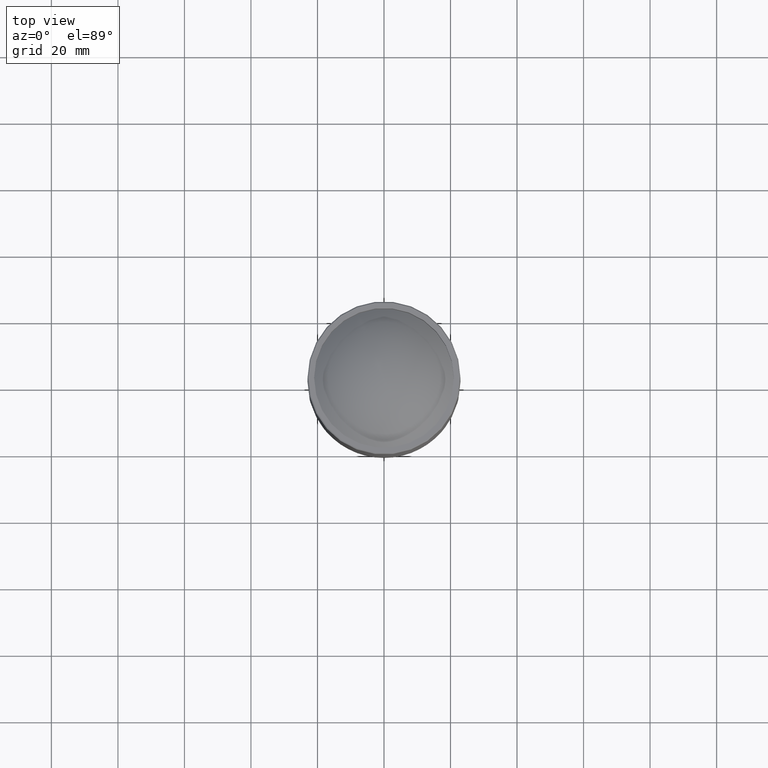
[diagram: clean part render]
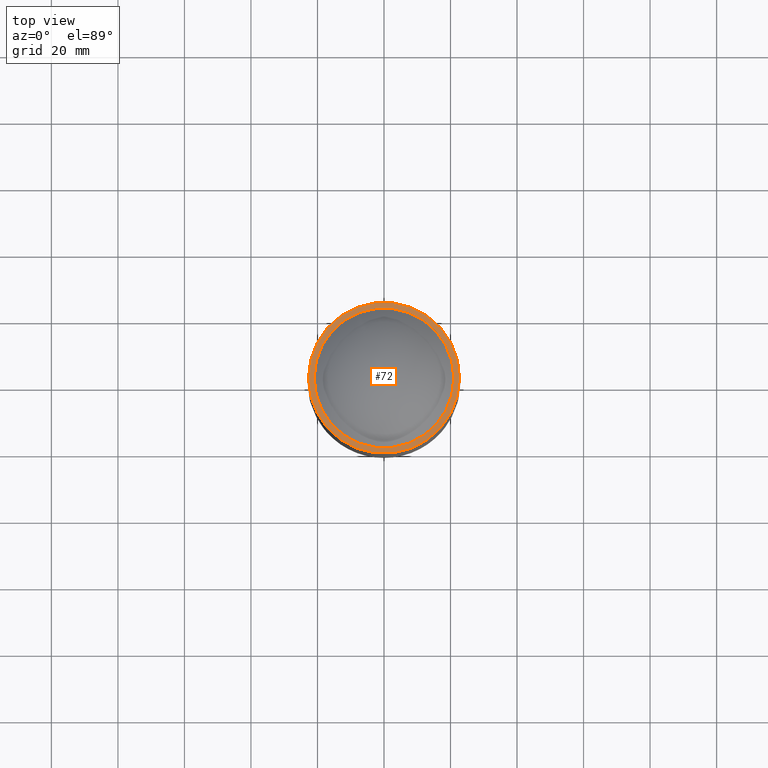
[diagram: same view with one face highlighted and labeled with its STEP entity id]
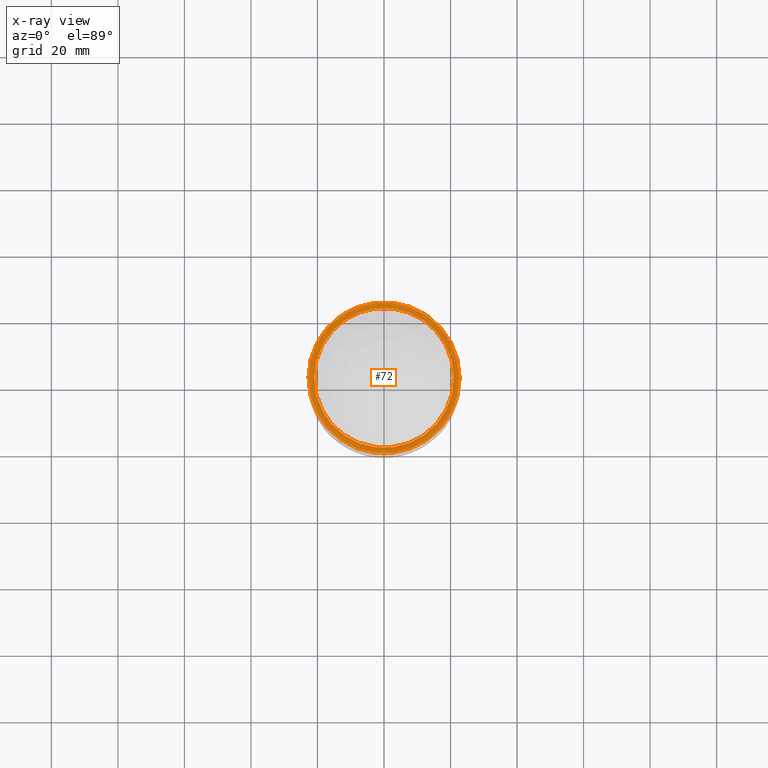
[diagram: x-ray of the same camera — body ghosted, the highlighted face saturated]
A machine part, top view. The second image highlights one B-rep face of the part: STEP entity #72.
The next image is the same camera in x-ray: the body ghosted, the highlighted face saturated — about 0% of this face is hidden behind the body in this view.
In plain terms, the highlighted planar face has unit normal (-0, 0, -1).
Its self-contained STEP definition (entity closure, byte-faithful):
#26 = DIRECTION ( 'NONE',  ( -1.110223024625161717E-16, 1.387778780781447216E-17, -1.000000000000000000 ) ) ;
#38 = FACE_BOUND ( 'NONE', #367, .T. ) ;
#72 = ADVANCED_FACE ( 'NONE', ( #38, #492 ), #103, .F. ) ;
#96 = VERTEX_POINT ( 'NONE', #167 ) ;
#103 = PLANE ( 'NONE',  #819 ) ;
#106 = CARTESIAN_POINT ( 'NONE',  ( -7.473226879204271194E-15, 21.75000000000004974, -532.0000000000001137 ) ) ;
#157 = EDGE_CURVE ( 'NONE', #734, #734, #546, .T. ) ;
#167 = CARTESIAN_POINT ( 'NONE',  ( -22.70000000000002416, 2.913148922469180202E-14, -532.0000000000001137 ) ) ;
#168 = AXIS2_PLACEMENT_3D ( 'NONE', #353, #345, #610 ) ;
#338 = EDGE_LOOP ( 'NONE', ( #414 ) ) ;
#345 = DIRECTION ( 'NONE',  ( 0.000000000000000000, 0.000000000000000000, 1.000000000000000000 ) ) ;
#353 = CARTESIAN_POINT ( 'NONE',  ( 0.000000000000000000, 0.000000000000000000, -532.0000000000001137 ) ) ;
#367 = EDGE_LOOP ( 'NONE', ( #666 ) ) ;
#414 = ORIENTED_EDGE ( 'NONE', *, *, #491, .F. ) ;
#480 = CIRCLE ( 'NONE', #806, 22.70000000000003126 ) ;
#491 = EDGE_CURVE ( 'NONE', #96, #96, #480, .T. ) ;
#492 = FACE_OUTER_BOUND ( 'NONE', #338, .T. ) ;
#535 = CARTESIAN_POINT ( 'NONE',  ( 5.204170427930421283E-15, 2.913148922469180202E-14, -532.0000000000001137 ) ) ;
#546 = CIRCLE ( 'NONE', #168, 21.00000000000000000 ) ;
#556 = DIRECTION ( 'NONE',  ( -1.000000000000000000, 0.000000000000000000, 1.110223024625161717E-16 ) ) ;
#610 = DIRECTION ( 'NONE',  ( 1.000000000000000000, 0.000000000000000000, 0.000000000000000000 ) ) ;
#666 = ORIENTED_EDGE ( 'NONE', *, *, #157, .F. ) ;
#683 = CARTESIAN_POINT ( 'NONE',  ( 21.00000000000000000, 0.000000000000000000, -532.0000000000001137 ) ) ;
#734 = VERTEX_POINT ( 'NONE', #683 ) ;
#771 = DIRECTION ( 'NONE',  ( 0.000000000000000000, 0.000000000000000000, -1.000000000000000000 ) ) ;
#806 = AXIS2_PLACEMENT_3D ( 'NONE', #535, #771, #811 ) ;
#811 = DIRECTION ( 'NONE',  ( -1.000000000000000000, 0.000000000000000000, 0.000000000000000000 ) ) ;
#819 = AXIS2_PLACEMENT_3D ( 'NONE', #106, #26, #556 ) ;